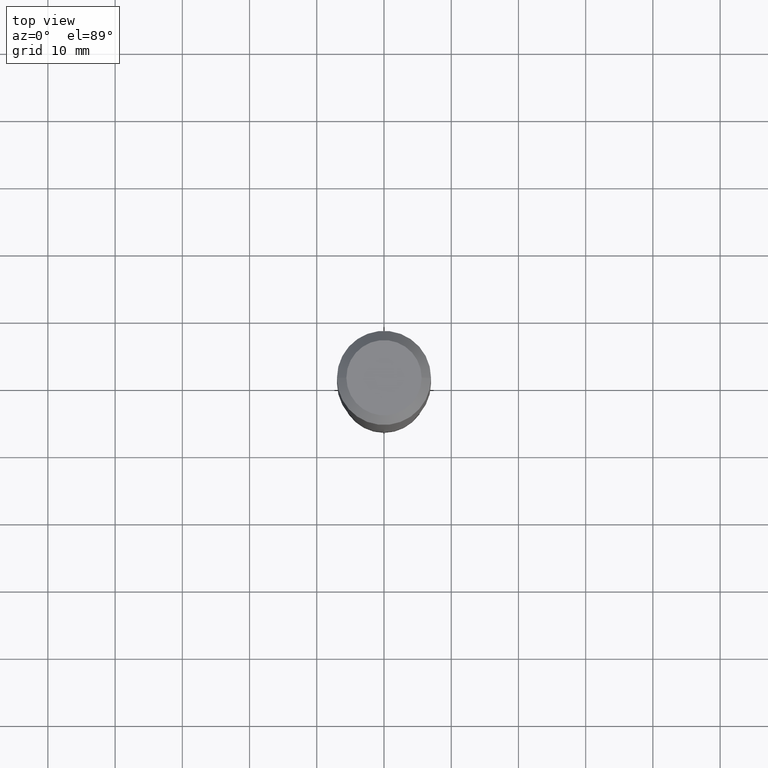
[diagram: clean part render]
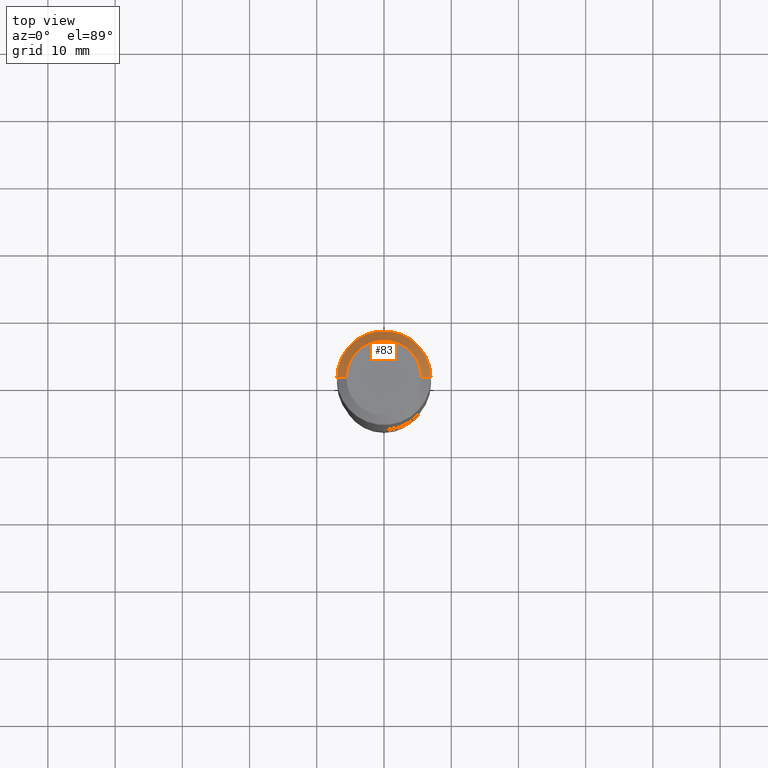
[diagram: same view with one face highlighted and labeled with its STEP entity id]
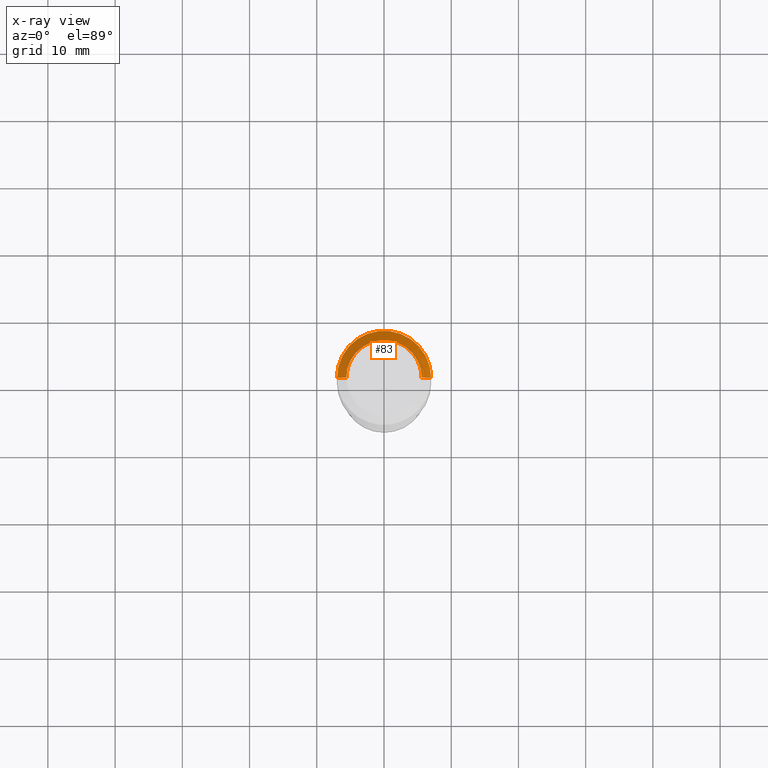
[diagram: x-ray of the same camera — body ghosted, the highlighted face saturated]
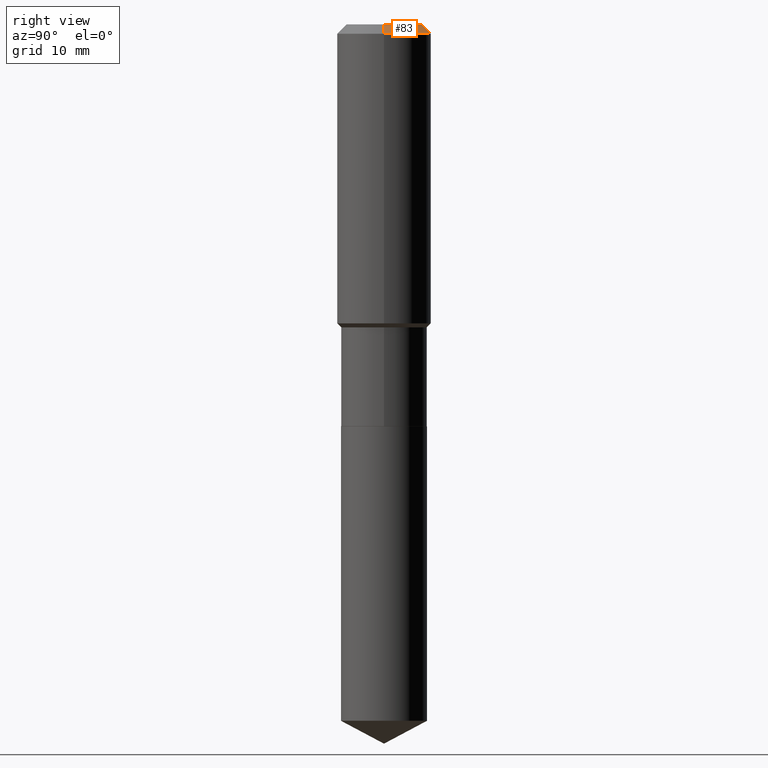
[diagram: same view with one face highlighted and labeled with its STEP entity id]
A machine part, top view. The second image highlights one B-rep face of the part: STEP entity #83.
The next image is the same camera in x-ray: the body ghosted, the highlighted face saturated — about 0% of this face is hidden behind the body in this view.
A second angle (right view) of the same face is appended — the face is thin or edge-on in the first view.
In plain terms, the highlighted conical surface has half-angle 45 deg.
Its self-contained STEP definition (entity closure, byte-faithful):
#9 = ORIENTED_EDGE ( 'NONE', *, *, #152, .F. ) ;
#13 = AXIS2_PLACEMENT_3D ( 'NONE', #359, #68, #222 ) ;
#16 = EDGE_CURVE ( 'NONE', #89, #325, #437, .T. ) ;
#28 = AXIS2_PLACEMENT_3D ( 'NONE', #33, #261, #478 ) ;
#33 = CARTESIAN_POINT ( 'NONE',  ( 1.347942405969256063E-30, -1.924504513970354330E-16, -0.05512000000000035621 ) ) ;
#47 = VERTEX_POINT ( 'NONE', #397 ) ;
#68 = DIRECTION ( 'NONE',  ( -2.445468806185136597E-29, 3.491481338843145583E-15, 1.000000000000000000 ) ) ;
#83 = ADVANCED_FACE ( 'NONE', ( #253 ), #174, .T. ) ;
#89 = VERTEX_POINT ( 'NONE', #219 ) ;
#107 = CARTESIAN_POINT ( 'NONE',  ( 1.347942405969256063E-30, -1.924504513970354330E-16, -0.05512000000000035621 ) ) ;
#134 = VERTEX_POINT ( 'NONE', #217 ) ;
#152 = EDGE_CURVE ( 'NONE', #89, #134, #309, .T. ) ;
#174 = CONICAL_SURFACE ( 'NONE', #28, 0.2756000000000000116, 0.7853981633974452814 ) ;
#191 = CARTESIAN_POINT ( 'NONE',  ( 0.2756000000000000116, -2.116954965367370658E-15, -0.05512000000000035621 ) ) ;
#217 = CARTESIAN_POINT ( 'NONE',  ( -0.2204800000000000093, 1.635828836874783961E-15, 3.860086710901350968E-18 ) ) ;
#219 = CARTESIAN_POINT ( 'NONE',  ( 0.2204800000000000093, -1.797903149065768707E-15, 3.860086710924123164E-18 ) ) ;
#222 = DIRECTION ( 'NONE',  ( 1.000000000000000000, -6.982962677686266711E-15, 4.876132675269083677E-29 ) ) ;
#224 = EDGE_CURVE ( 'NONE', #134, #47, #339, .T. ) ;
#237 = DIRECTION ( 'NONE',  ( 1.000000000000000000, -6.982962677686265922E-15, 0.000000000000000000 ) ) ;
#240 = AXIS2_PLACEMENT_3D ( 'NONE', #107, #272, #237 ) ;
#253 = FACE_OUTER_BOUND ( 'NONE', #290, .T. ) ;
#261 = DIRECTION ( 'NONE',  ( 2.445468806185136597E-29, -3.491481338843145583E-15, -1.000000000000000000 ) ) ;
#269 = DIRECTION ( 'NONE',  ( -0.7071067811865453523, 2.468850131082234184E-15, -0.7071067811865496822 ) ) ;
#272 = DIRECTION ( 'NONE',  ( -2.445468806185136597E-29, 3.491481338843145583E-15, 1.000000000000000000 ) ) ;
#290 = EDGE_LOOP ( 'NONE', ( #9, #454, #349, #440 ) ) ;
#294 = DIRECTION ( 'NONE',  ( 0.7071067811865453523, -7.319954787623248157E-15, -0.7071067811865496822 ) ) ;
#309 = CIRCLE ( 'NONE', #13, 0.2204800000000000093 ) ;
#325 = VERTEX_POINT ( 'NONE', #191 ) ;
#334 = CARTESIAN_POINT ( 'NONE',  ( -0.2756000000000000116, 1.732054062573300039E-15, -0.05512000000000035621 ) ) ;
#339 = LINE ( 'NONE', #334, #473 ) ;
#349 = ORIENTED_EDGE ( 'NONE', *, *, #477, .T. ) ;
#359 = CARTESIAN_POINT ( 'NONE',  ( -9.439721640706190018E-47, 1.347742071746724849E-32, 3.860086710912454339E-18 ) ) ;
#370 = CIRCLE ( 'NONE', #240, 0.2756000000000000116 ) ;
#397 = CARTESIAN_POINT ( 'NONE',  ( -0.2756000000000000116, -1.195023219201267736E-15, -0.05512000000000035621 ) ) ;
#421 = VECTOR ( 'NONE', #294, 39.37007874015748143 ) ;
#437 = LINE ( 'NONE', #479, #421 ) ;
#440 = ORIENTED_EDGE ( 'NONE', *, *, #224, .F. ) ;
#454 = ORIENTED_EDGE ( 'NONE', *, *, #16, .T. ) ;
#473 = VECTOR ( 'NONE', #269, 39.37007874015748143 ) ;
#477 = EDGE_CURVE ( 'NONE', #325, #47, #370, .T. ) ;
#478 = DIRECTION ( 'NONE',  ( -1.000000000000000000, 6.982962677686269077E-15, 0.000000000000000000 ) ) ;
#479 = CARTESIAN_POINT ( 'NONE',  ( 0.2756000000000000116, -2.083203699582869812E-15, -0.05512000000000035621 ) ) ;